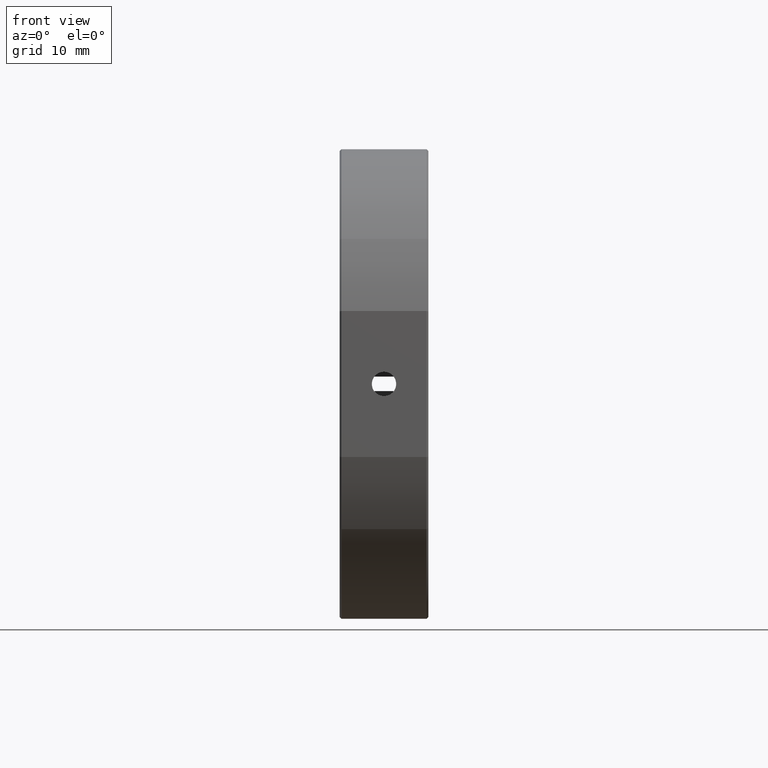
[diagram: clean part render]
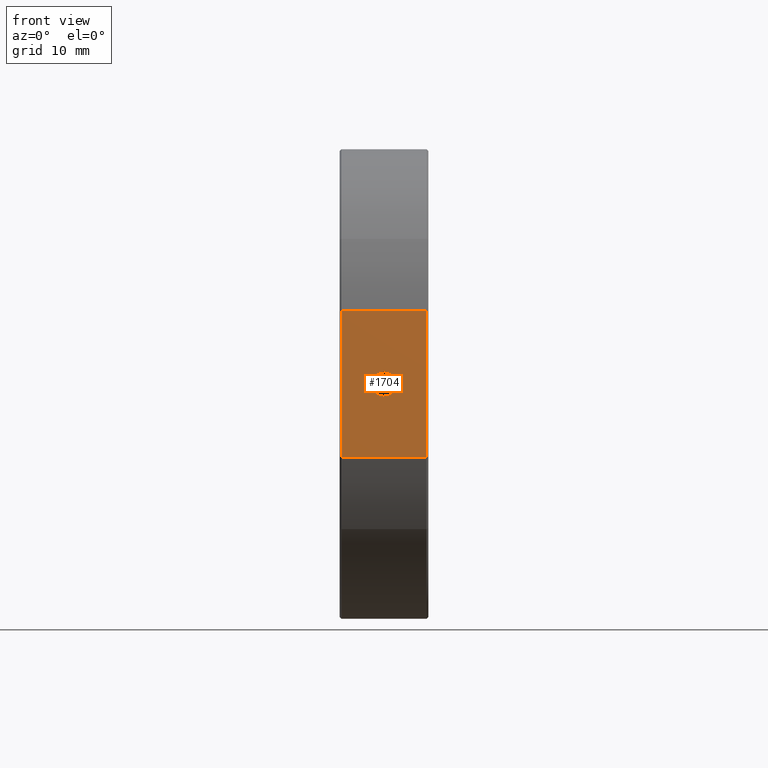
[diagram: same view with one face highlighted and labeled with its STEP entity id]
A machine part, front view. The second image highlights one B-rep face of the part: STEP entity #1704.
In plain terms, the highlighted planar face has unit normal (0, 1, 0).
Its self-contained STEP definition (entity closure, byte-faithful):
#95 = VECTOR ( 'NONE', #1606, 1000.000000000000000 ) ;
#173 = CARTESIAN_POINT ( 'NONE',  ( 0.5085676037483114476, -44.32033650618402731, -9.867623827447047802 ) ) ;
#175 = ORIENTED_EDGE ( 'NONE', *, *, #1953, .F. ) ;
#338 = PLANE ( 'NONE',  #799 ) ;
#369 = VECTOR ( 'NONE', #928, 1000.000000000000000 ) ;
#400 = EDGE_CURVE ( 'NONE', #1730, #689, #1647, .T. ) ;
#627 = VECTOR ( 'NONE', #1429, 1000.000000000000000 ) ;
#689 = VERTEX_POINT ( 'NONE', #1355 ) ;
#799 = AXIS2_PLACEMENT_3D ( 'NONE', #2300, #2118, #1935 ) ;
#804 = CARTESIAN_POINT ( 'NONE',  ( -5.491432396251688886, -44.32033650618402731, -1.649999999999989919 ) ) ;
#849 = CARTESIAN_POINT ( 'NONE',  ( -5.491432396251688886, -44.32033650618402731, 0.0000000000000000000 ) ) ;
#874 = EDGE_CURVE ( 'NONE', #1197, #2076, #2298, .T. ) ;
#884 = AXIS2_PLACEMENT_3D ( 'NONE', #849, #1782, #1026 ) ;
#892 = VERTEX_POINT ( 'NONE', #804 ) ;
#913 = AXIS2_PLACEMENT_3D ( 'NONE', #1315, #1869, #1507 ) ;
#928 = DIRECTION ( 'NONE',  ( 0.0000000000000000000, 0.0000000000000000000, -1.000000000000000000 ) ) ;
#967 = CIRCLE ( 'NONE', #884, 1.649999999999989919 ) ;
#993 = CARTESIAN_POINT ( 'NONE',  ( -11.24143239625168889, -44.32033650618402731, -9.867623827447047802 ) ) ;
#1026 = DIRECTION ( 'NONE',  ( 0.0000000000000000000, 0.0000000000000000000, -1.000000000000000000 ) ) ;
#1034 = EDGE_CURVE ( 'NONE', #1197, #689, #1870, .T. ) ;
#1058 = CARTESIAN_POINT ( 'NONE',  ( 0.5085676037483114476, -44.32033650618402731, 9.867623827447047802 ) ) ;
#1165 = FACE_BOUND ( 'NONE', #2047, .T. ) ;
#1195 = CIRCLE ( 'NONE', #913, 1.649999999999989919 ) ;
#1197 = VERTEX_POINT ( 'NONE', #1338 ) ;
#1211 = ORIENTED_EDGE ( 'NONE', *, *, #400, .F. ) ;
#1238 = CARTESIAN_POINT ( 'NONE',  ( -11.24143239625171198, -44.32033650618402731, 9.867623827447047802 ) ) ;
#1258 = EDGE_LOOP ( 'NONE', ( #1211, #1669, #1891, #1845 ) ) ;
#1315 = CARTESIAN_POINT ( 'NONE',  ( -5.491432396251688886, -44.32033650618402731, 0.0000000000000000000 ) ) ;
#1338 = CARTESIAN_POINT ( 'NONE',  ( 0.2585676037482695921, -44.32033650618402731, -9.867623827447047802 ) ) ;
#1355 = CARTESIAN_POINT ( 'NONE',  ( 0.2585676037482939060, -44.32033650618402731, 9.867623827447047802 ) ) ;
#1429 = DIRECTION ( 'NONE',  ( -1.000000000000000000, -0.0000000000000000000, -0.0000000000000000000 ) ) ;
#1436 = EDGE_CURVE ( 'NONE', #1741, #892, #967, .T. ) ;
#1477 = CARTESIAN_POINT ( 'NONE',  ( 0.2585676037483112255, -44.32033650618402731, 9.867623827447047802 ) ) ;
#1496 = CARTESIAN_POINT ( 'NONE',  ( -11.24143239625168889, -44.32033650618402731, 49.99999999999999289 ) ) ;
#1507 = DIRECTION ( 'NONE',  ( 0.0000000000000000000, 0.0000000000000000000, -1.000000000000000000 ) ) ;
#1563 = ORIENTED_EDGE ( 'NONE', *, *, #1436, .F. ) ;
#1606 = DIRECTION ( 'NONE',  ( 1.000000000000000000, 0.0000000000000000000, 0.0000000000000000000 ) ) ;
#1647 = LINE ( 'NONE', #1058, #95 ) ;
#1669 = ORIENTED_EDGE ( 'NONE', *, *, #1878, .T. ) ;
#1704 = ADVANCED_FACE ( 'NONE', ( #1165, #1723 ), #338, .F. ) ;
#1723 = FACE_OUTER_BOUND ( 'NONE', #1258, .T. ) ;
#1730 = VERTEX_POINT ( 'NONE', #1238 ) ;
#1741 = VERTEX_POINT ( 'NONE', #1777 ) ;
#1777 = CARTESIAN_POINT ( 'NONE',  ( -5.491432396251688886, -44.32033650618402731, 1.649999999999989919 ) ) ;
#1782 = DIRECTION ( 'NONE',  ( -0.0000000000000000000, -1.000000000000000000, -0.0000000000000000000 ) ) ;
#1832 = DIRECTION ( 'NONE',  ( 0.0000000000000000000, 0.0000000000000000000, 1.000000000000000000 ) ) ;
#1845 = ORIENTED_EDGE ( 'NONE', *, *, #1034, .T. ) ;
#1869 = DIRECTION ( 'NONE',  ( -0.0000000000000000000, -1.000000000000000000, -0.0000000000000000000 ) ) ;
#1870 = LINE ( 'NONE', #1477, #2027 ) ;
#1878 = EDGE_CURVE ( 'NONE', #1730, #2076, #2257, .T. ) ;
#1891 = ORIENTED_EDGE ( 'NONE', *, *, #874, .F. ) ;
#1935 = DIRECTION ( 'NONE',  ( 0.0000000000000000000, -0.0000000000000000000, 1.000000000000000000 ) ) ;
#1953 = EDGE_CURVE ( 'NONE', #892, #1741, #1195, .T. ) ;
#2027 = VECTOR ( 'NONE', #1832, 1000.000000000000000 ) ;
#2047 = EDGE_LOOP ( 'NONE', ( #175, #1563 ) ) ;
#2076 = VERTEX_POINT ( 'NONE', #993 ) ;
#2118 = DIRECTION ( 'NONE',  ( 0.0000000000000000000, 1.000000000000000000, 0.0000000000000000000 ) ) ;
#2257 = LINE ( 'NONE', #1496, #369 ) ;
#2298 = LINE ( 'NONE', #173, #627 ) ;
#2300 = CARTESIAN_POINT ( 'NONE',  ( -11.49143239625168889, -44.32033650618402731, 49.99999999999999289 ) ) ;